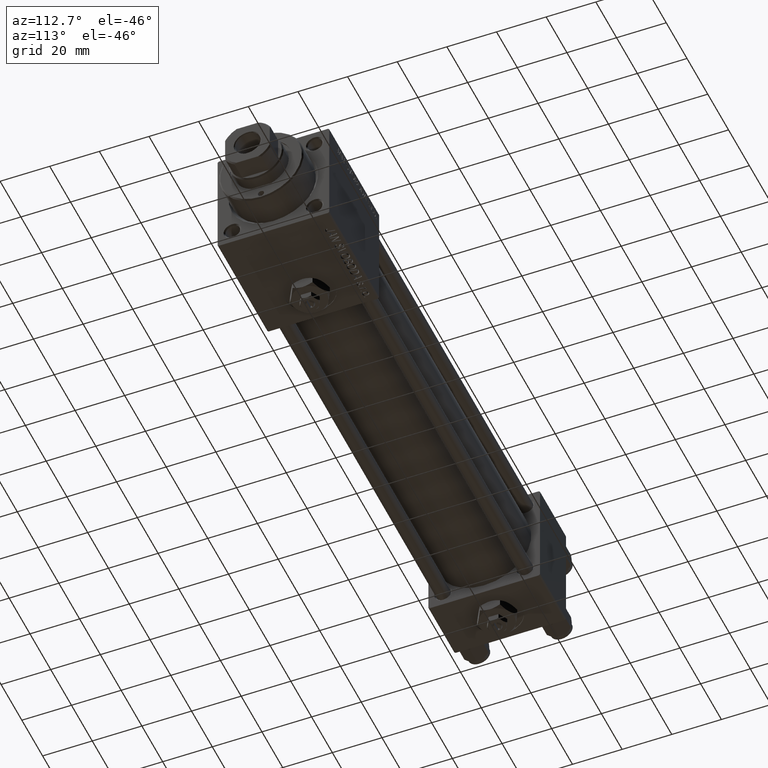
[diagram: clean part render]
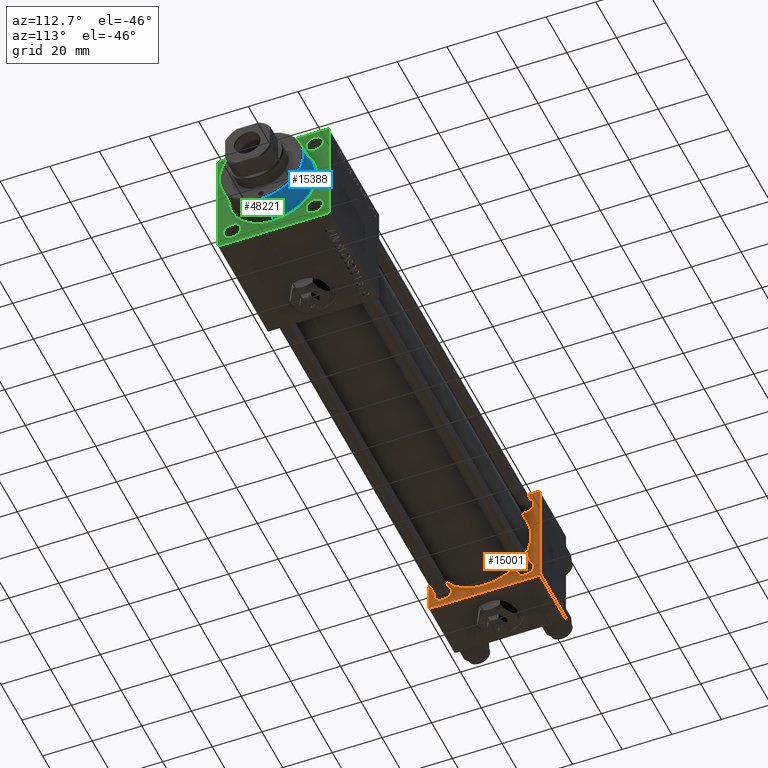
[diagram: same view with three faces highlighted in distinct colors, each labeled with its STEP entity id]
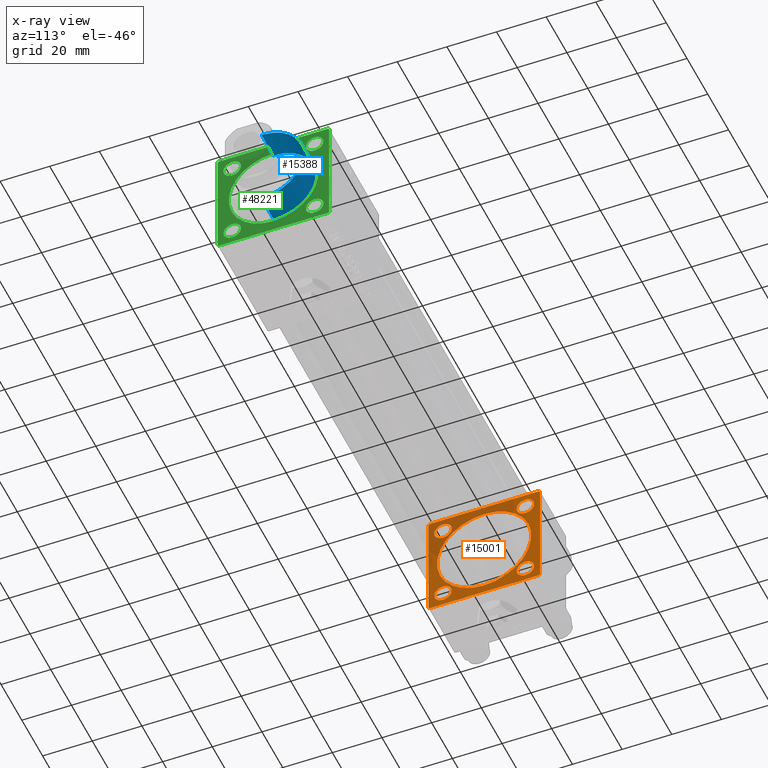
[diagram: x-ray of the same camera — body ghosted, the three highlighted faces saturated]
A machine part, auxiliary view with three faces highlighted in distinct colors.
The next image is the same camera in x-ray (body ghosted, the three faces saturated) — at least one of them is partly hidden behind the body in this view.
Their STEP definitions:

[orange] entity #15001 — the highlighted planar face has unit normal (-1, 0, 0).
#54 = DIRECTION ( 'NONE',  ( -0.000000000000000000, 0.7071067811865426878, 0.7071067811865524577 ) ) ;
#562 = CARTESIAN_POINT ( 'NONE',  ( 25.00000000000000000, 22.50000000000000000, -21.99999999999996803 ) ) ;
#611 = DIRECTION ( 'NONE',  ( -1.000000000000000000, 0.000000000000000000, -0.000000000000000000 ) ) ;
#821 = DIRECTION ( 'NONE',  ( 0.000000000000000000, 0.000000000000000000, 1.000000000000000000 ) ) ;
#858 = CARTESIAN_POINT ( 'NONE',  ( 25.00000000000000000, 16.59999999999999787, -20.10000000000003340 ) ) ;
#1456 = CARTESIAN_POINT ( 'NONE',  ( 25.00000000000000000, 16.59999999999999787, 13.09999999999997300 ) ) ;
#1690 = CARTESIAN_POINT ( 'NONE',  ( 24.99999999999999289, -2.602085213965210642E-15, 0.000000000000000000 ) ) ;
#1857 = CARTESIAN_POINT ( 'NONE',  ( 24.99999999999999289, -2.752562955852396712E-16, -19.00000000000000000 ) ) ;
#2582 = AXIS2_PLACEMENT_3D ( 'NONE', #49277, #16480, #7608 ) ;
#2996 = DIRECTION ( 'NONE',  ( 0.000000000000000000, -1.000000000000000000, -2.312964634635742957E-16 ) ) ;
#3019 = CARTESIAN_POINT ( 'NONE',  ( 25.00000000000000000, -16.59999999999999076, 13.09999999999997300 ) ) ;
#3586 = CIRCLE ( 'NONE', #19974, 3.500000000000034195 ) ;
#3744 = LINE ( 'NONE', #16154, #9603 ) ;
#4223 = CARTESIAN_POINT ( 'NONE',  ( 25.00000000000000000, -16.59999999999999076, 20.10000000000004050 ) ) ;
#4245 = VERTEX_POINT ( 'NONE', #43832 ) ;
#4302 = DIRECTION ( 'NONE',  ( -1.000000000000000000, 0.000000000000000000, -0.000000000000000000 ) ) ;
#4357 = AXIS2_PLACEMENT_3D ( 'NONE', #25461, #41700, #41427 ) ;
#4558 = ORIENTED_EDGE ( 'NONE', *, *, #30604, .T. ) ;
#4705 = VERTEX_POINT ( 'NONE', #52416 ) ;
#5080 = CARTESIAN_POINT ( 'NONE',  ( 25.00000000000000000, -16.59999999999999076, 16.60000000000000853 ) ) ;
#5137 = CARTESIAN_POINT ( 'NONE',  ( 24.99999999999999289, -2.602085213965210642E-15, 0.000000000000000000 ) ) ;
#5138 = VERTEX_POINT ( 'NONE', #52233 ) ;
#5696 = VERTEX_POINT ( 'NONE', #22384 ) ;
#5780 = DIRECTION ( 'NONE',  ( 0.000000000000000000, 0.000000000000000000, 1.000000000000000000 ) ) ;
#6045 = CARTESIAN_POINT ( 'NONE',  ( 25.00000000000000000, 16.59999999999999787, -16.60000000000000497 ) ) ;
#6524 = CARTESIAN_POINT ( 'NONE',  ( 25.00000000000000000, 22.50000000000000000, -22.49999999999999645 ) ) ;
#7250 = VERTEX_POINT ( 'NONE', #51194 ) ;
#7306 = DIRECTION ( 'NONE',  ( 0.000000000000000000, -0.7071067811865474617, 0.7071067811865474617 ) ) ;
#7608 = DIRECTION ( 'NONE',  ( -0.000000000000000000, 0.000000000000000000, 1.000000000000000000 ) ) ;
#7901 = VERTEX_POINT ( 'NONE', #1456 ) ;
#8117 = ORIENTED_EDGE ( 'NONE', *, *, #30043, .T. ) ;
#9062 = DIRECTION ( 'NONE',  ( 0.000000000000000000, 0.000000000000000000, 1.000000000000000000 ) ) ;
#9171 = VECTOR ( 'NONE', #46180, 1000.000000000000000 ) ;
#9564 = VECTOR ( 'NONE', #26753, 1000.000000000000000 ) ;
#9603 = VECTOR ( 'NONE', #52734, 1000.000000000000000 ) ;
#9936 = EDGE_CURVE ( 'NONE', #50909, #52611, #30142, .T. ) ;
#10244 = CARTESIAN_POINT ( 'NONE',  ( 25.00000000000000000, 22.50000000000000000, 22.50000000000000355 ) ) ;
#10296 = VECTOR ( 'NONE', #2996, 1000.000000000000000 ) ;
#10301 = EDGE_CURVE ( 'NONE', #28830, #5138, #23003, .T. ) ;
#11914 = FACE_BOUND ( 'NONE', #35670, .T. ) ;
#12404 = EDGE_CURVE ( 'NONE', #45348, #28450, #22300, .T. ) ;
#12761 = ORIENTED_EDGE ( 'NONE', *, *, #22228, .F. ) ;
#13361 = ORIENTED_EDGE ( 'NONE', *, *, #39780, .T. ) ;
#13401 = AXIS2_PLACEMENT_3D ( 'NONE', #18227, #22291, #9062 ) ;
#13411 = LINE ( 'NONE', #37244, #9171 ) ;
#13551 = ORIENTED_EDGE ( 'NONE', *, *, #10301, .F. ) ;
#13615 = ORIENTED_EDGE ( 'NONE', *, *, #37927, .T. ) ;
#14830 = DIRECTION ( 'NONE',  ( -1.000000000000000000, 0.000000000000000000, -0.000000000000000000 ) ) ;
#14867 = AXIS2_PLACEMENT_3D ( 'NONE', #41353, #4302, #16978 ) ;
#15001 = ADVANCED_FACE ( 'NONE', ( #36544, #15957, #11914, #49012, #28944, #45204 ), #45729, .F. ) ;
#15059 = ORIENTED_EDGE ( 'NONE', *, *, #25457, .T. ) ;
#15382 = CARTESIAN_POINT ( 'NONE',  ( 25.00000000000000000, 21.99999999999999289, 22.50000000000000355 ) ) ;
#15397 = CIRCLE ( 'NONE', #22319, 19.00000000000000000 ) ;
#15570 = CIRCLE ( 'NONE', #4357, 3.500000000000031086 ) ;
#15957 = FACE_BOUND ( 'NONE', #51890, .T. ) ;
#16013 = ORIENTED_EDGE ( 'NONE', *, *, #28994, .T. ) ;
#16154 = CARTESIAN_POINT ( 'NONE',  ( 25.00000000000000000, -22.50000000000000000, 22.50000000000000000 ) ) ;
#16480 = DIRECTION ( 'NONE',  ( -1.000000000000000000, 0.000000000000000000, -0.000000000000000000 ) ) ;
#16942 = EDGE_CURVE ( 'NONE', #7250, #5696, #47339, .T. ) ;
#16978 = DIRECTION ( 'NONE',  ( 0.000000000000000000, 0.000000000000000000, 1.000000000000000000 ) ) ;
#17831 = DIRECTION ( 'NONE',  ( 1.000000000000000000, -0.000000000000000000, 0.000000000000000000 ) ) ;
#18088 = CARTESIAN_POINT ( 'NONE',  ( 25.00000000000000000, -22.50000000000000000, 22.00000000000000000 ) ) ;
#18227 = CARTESIAN_POINT ( 'NONE',  ( 25.00000000000000000, -16.59999999999999076, -16.60000000000000853 ) ) ;
#19203 = ORIENTED_EDGE ( 'NONE', *, *, #12404, .F. ) ;
#19374 = EDGE_LOOP ( 'NONE', ( #24273, #19203 ) ) ;
#19974 = AXIS2_PLACEMENT_3D ( 'NONE', #25205, #611, #21960 ) ;
#20187 = ORIENTED_EDGE ( 'NONE', *, *, #16942, .T. ) ;
#20585 = CARTESIAN_POINT ( 'NONE',  ( 25.00000000000000000, 22.50000000000000000, -21.99999999999998224 ) ) ;
#20627 = CIRCLE ( 'NONE', #27563, 3.500000000000034195 ) ;
#21575 = DIRECTION ( 'NONE',  ( 0.000000000000000000, 0.000000000000000000, 1.000000000000000000 ) ) ;
#21893 = DIRECTION ( 'NONE',  ( 0.000000000000000000, 0.000000000000000000, 1.000000000000000000 ) ) ;
#21960 = DIRECTION ( 'NONE',  ( 0.000000000000000000, 0.000000000000000000, 1.000000000000000000 ) ) ;
#22181 = VERTEX_POINT ( 'NONE', #3019 ) ;
#22228 = EDGE_CURVE ( 'NONE', #4245, #37304, #31940, .T. ) ;
#22291 = DIRECTION ( 'NONE',  ( -1.000000000000000000, 0.000000000000000000, -0.000000000000000000 ) ) ;
#22300 = CIRCLE ( 'NONE', #29208, 19.00000000000000000 ) ;
#22319 = AXIS2_PLACEMENT_3D ( 'NONE', #1690, #51756, #51234 ) ;
#22384 = CARTESIAN_POINT ( 'NONE',  ( 25.00000000000000000, -21.99999999999997868, 22.50000000000000000 ) ) ;
#22869 = AXIS2_PLACEMENT_3D ( 'NONE', #30565, #42759, #30030 ) ;
#23003 = LINE ( 'NONE', #6524, #10296 ) ;
#23244 = LINE ( 'NONE', #15382, #39229 ) ;
#23350 = CARTESIAN_POINT ( 'NONE',  ( 25.00000000000000000, 21.99999999999999289, -22.49999999999999645 ) ) ;
#24031 = VERTEX_POINT ( 'NONE', #32043 ) ;
#24139 = LINE ( 'NONE', #49333, #24221 ) ;
#24221 = VECTOR ( 'NONE', #33060, 999.9999999999998863 ) ;
#24246 = ORIENTED_EDGE ( 'NONE', *, *, #44624, .T. ) ;
#24273 = ORIENTED_EDGE ( 'NONE', *, *, #50652, .F. ) ;
#25205 = CARTESIAN_POINT ( 'NONE',  ( 25.00000000000000000, -16.59999999999999076, 16.60000000000000853 ) ) ;
#25457 = EDGE_CURVE ( 'NONE', #52611, #50909, #15570, .T. ) ;
#25461 = CARTESIAN_POINT ( 'NONE',  ( 25.00000000000000000, 16.59999999999999787, -16.60000000000000497 ) ) ;
#25707 = EDGE_CURVE ( 'NONE', #27833, #22181, #20627, .T. ) ;
#26323 = CIRCLE ( 'NONE', #22869, 3.500000000000031086 ) ;
#26559 = DIRECTION ( 'NONE',  ( 0.000000000000000000, 0.000000000000000000, -1.000000000000000000 ) ) ;
#26753 = DIRECTION ( 'NONE',  ( 0.000000000000000000, -1.000000000000000000, -7.709882115452476934E-17 ) ) ;
#26970 = ORIENTED_EDGE ( 'NONE', *, *, #52015, .T. ) ;
#27563 = AXIS2_PLACEMENT_3D ( 'NONE', #5080, #38093, #21575 ) ;
#27833 = VERTEX_POINT ( 'NONE', #4223 ) ;
#28450 = VERTEX_POINT ( 'NONE', #50582 ) ;
#28830 = VERTEX_POINT ( 'NONE', #23350 ) ;
#28944 = FACE_BOUND ( 'NONE', #19374, .T. ) ;
#28994 = EDGE_CURVE ( 'NONE', #5696, #45952, #24139, .T. ) ;
#29208 = AXIS2_PLACEMENT_3D ( 'NONE', #5137, #17831, #821 ) ;
#29247 = LINE ( 'NONE', #20585, #32986 ) ;
#29268 = VERTEX_POINT ( 'NONE', #30601 ) ;
#30030 = DIRECTION ( 'NONE',  ( 0.000000000000000000, 0.000000000000000000, 1.000000000000000000 ) ) ;
#30043 = EDGE_CURVE ( 'NONE', #22181, #27833, #3586, .T. ) ;
#30142 = CIRCLE ( 'NONE', #37062, 3.500000000000031086 ) ;
#30446 = ORIENTED_EDGE ( 'NONE', *, *, #41547, .T. ) ;
#30491 = EDGE_LOOP ( 'NONE', ( #26970, #30446 ) ) ;
#30565 = CARTESIAN_POINT ( 'NONE',  ( 25.00000000000000000, 16.59999999999999787, 16.60000000000000497 ) ) ;
#30601 = CARTESIAN_POINT ( 'NONE',  ( 25.00000000000000000, 16.59999999999999787, 20.10000000000003340 ) ) ;
#30604 = EDGE_CURVE ( 'NONE', #45952, #31758, #3744, .T. ) ;
#31423 = CARTESIAN_POINT ( 'NONE',  ( 25.00000000000000000, 22.50000000000000000, 22.50000000000000355 ) ) ;
#31758 = VERTEX_POINT ( 'NONE', #38398 ) ;
#31940 = LINE ( 'NONE', #31423, #33958 ) ;
#32043 = CARTESIAN_POINT ( 'NONE',  ( 25.00000000000000000, -16.59999999999999076, -20.10000000000003695 ) ) ;
#32264 = CIRCLE ( 'NONE', #52144, 3.500000000000031086 ) ;
#32986 = VECTOR ( 'NONE', #54, 1000.000000000000000 ) ;
#33060 = DIRECTION ( 'NONE',  ( -0.000000000000000000, -0.7071067811865525687, -0.7071067811865425767 ) ) ;
#33958 = VECTOR ( 'NONE', #26559, 1000.000000000000000 ) ;
#35013 = CIRCLE ( 'NONE', #13401, 3.500000000000031086 ) ;
#35670 = EDGE_LOOP ( 'NONE', ( #8117, #49488 ) ) ;
#36208 = ORIENTED_EDGE ( 'NONE', *, *, #42890, .T. ) ;
#36544 = FACE_BOUND ( 'NONE', #45676, .T. ) ;
#37062 = AXIS2_PLACEMENT_3D ( 'NONE', #6045, #51530, #5780 ) ;
#37244 = CARTESIAN_POINT ( 'NONE',  ( 25.00000000000000000, -21.99999999999998579, -22.50000000000000711 ) ) ;
#37304 = VERTEX_POINT ( 'NONE', #562 ) ;
#37927 = EDGE_CURVE ( 'NONE', #4705, #24031, #32264, .T. ) ;
#38093 = DIRECTION ( 'NONE',  ( -1.000000000000000000, 0.000000000000000000, -0.000000000000000000 ) ) ;
#38398 = CARTESIAN_POINT ( 'NONE',  ( 25.00000000000000000, -22.50000000000000000, -21.99999999999997158 ) ) ;
#38687 = CARTESIAN_POINT ( 'NONE',  ( 25.00000000000000000, 16.59999999999999787, -13.09999999999997300 ) ) ;
#39163 = ORIENTED_EDGE ( 'NONE', *, *, #9936, .T. ) ;
#39229 = VECTOR ( 'NONE', #7306, 1000.000000000000114 ) ;
#39780 = EDGE_CURVE ( 'NONE', #4245, #7250, #23244, .T. ) ;
#41353 = CARTESIAN_POINT ( 'NONE',  ( 25.00000000000000000, 16.59999999999999787, 16.60000000000000497 ) ) ;
#41427 = DIRECTION ( 'NONE',  ( 0.000000000000000000, 0.000000000000000000, 1.000000000000000000 ) ) ;
#41547 = EDGE_CURVE ( 'NONE', #29268, #7901, #26323, .T. ) ;
#41700 = DIRECTION ( 'NONE',  ( -1.000000000000000000, 0.000000000000000000, -0.000000000000000000 ) ) ;
#42759 = DIRECTION ( 'NONE',  ( -1.000000000000000000, 0.000000000000000000, -0.000000000000000000 ) ) ;
#42890 = EDGE_CURVE ( 'NONE', #24031, #4705, #35013, .T. ) ;
#43008 = CARTESIAN_POINT ( 'NONE',  ( 25.00000000000000000, -16.59999999999999076, -16.60000000000000853 ) ) ;
#43053 = ORIENTED_EDGE ( 'NONE', *, *, #51781, .T. ) ;
#43832 = CARTESIAN_POINT ( 'NONE',  ( 25.00000000000000000, 22.50000000000000000, 21.99999999999999645 ) ) ;
#44573 = EDGE_LOOP ( 'NONE', ( #13551, #43053, #12761, #13361, #20187, #16013, #4558, #24246 ) ) ;
#44624 = EDGE_CURVE ( 'NONE', #31758, #5138, #13411, .T. ) ;
#45204 = FACE_OUTER_BOUND ( 'NONE', #44573, .T. ) ;
#45348 = VERTEX_POINT ( 'NONE', #1857 ) ;
#45676 = EDGE_LOOP ( 'NONE', ( #36208, #13615 ) ) ;
#45729 = PLANE ( 'NONE',  #2582 ) ;
#45952 = VERTEX_POINT ( 'NONE', #18088 ) ;
#46180 = DIRECTION ( 'NONE',  ( 0.000000000000000000, 0.7071067811865426878, -0.7071067811865524577 ) ) ;
#47339 = LINE ( 'NONE', #10244, #9564 ) ;
#48591 = CIRCLE ( 'NONE', #14867, 3.500000000000031086 ) ;
#49012 = FACE_BOUND ( 'NONE', #30491, .T. ) ;
#49277 = CARTESIAN_POINT ( 'NONE',  ( 25.00000000000000000, 0.000000000000000000, 0.000000000000000000 ) ) ;
#49333 = CARTESIAN_POINT ( 'NONE',  ( 25.00000000000000000, -22.50000000000000000, 22.00000000000000000 ) ) ;
#49488 = ORIENTED_EDGE ( 'NONE', *, *, #25707, .T. ) ;
#50582 = CARTESIAN_POINT ( 'NONE',  ( 24.99999999999999289, -2.602085213965210642E-15, 19.00000000000000000 ) ) ;
#50652 = EDGE_CURVE ( 'NONE', #28450, #45348, #15397, .T. ) ;
#50909 = VERTEX_POINT ( 'NONE', #38687 ) ;
#51194 = CARTESIAN_POINT ( 'NONE',  ( 25.00000000000000000, 21.99999999999999289, 22.50000000000000355 ) ) ;
#51234 = DIRECTION ( 'NONE',  ( 0.000000000000000000, 0.000000000000000000, 1.000000000000000000 ) ) ;
#51530 = DIRECTION ( 'NONE',  ( -1.000000000000000000, 0.000000000000000000, -0.000000000000000000 ) ) ;
#51756 = DIRECTION ( 'NONE',  ( 1.000000000000000000, -0.000000000000000000, 0.000000000000000000 ) ) ;
#51781 = EDGE_CURVE ( 'NONE', #28830, #37304, #29247, .T. ) ;
#51890 = EDGE_LOOP ( 'NONE', ( #15059, #39163 ) ) ;
#52015 = EDGE_CURVE ( 'NONE', #7901, #29268, #48591, .T. ) ;
#52144 = AXIS2_PLACEMENT_3D ( 'NONE', #43008, #14830, #21893 ) ;
#52233 = CARTESIAN_POINT ( 'NONE',  ( 25.00000000000000000, -21.99999999999997158, -22.50000000000000711 ) ) ;
#52416 = CARTESIAN_POINT ( 'NONE',  ( 25.00000000000000000, -16.59999999999999076, -13.09999999999997655 ) ) ;
#52611 = VERTEX_POINT ( 'NONE', #858 ) ;
#52734 = DIRECTION ( 'NONE',  ( 0.000000000000000000, 0.000000000000000000, -1.000000000000000000 ) ) ;

[blue] entity #15388 — the highlighted cylindrical surface (partial cylindrical patch) has radius 17 mm, axis along (-1, -0, -0).
#305 = EDGE_LOOP ( 'NONE', ( #53503, #2838, #26036, #1406 ) ) ;
#1009 = CYLINDRICAL_SURFACE ( 'NONE', #32802, 17.00000000000000000 ) ;
#1406 = ORIENTED_EDGE ( 'NONE', *, *, #29190, .F. ) ;
#2433 = CIRCLE ( 'NONE', #35258, 17.00000000000000000 ) ;
#2838 = ORIENTED_EDGE ( 'NONE', *, *, #12674, .T. ) ;
#3289 = CARTESIAN_POINT ( 'NONE',  ( 17.00000000000000000, 2.081899558550500280E-15, 28.69999999999999929 ) ) ;
#4211 = LINE ( 'NONE', #13115, #50020 ) ;
#4370 = CARTESIAN_POINT ( 'NONE',  ( -17.00000000000000000, 0.000000000000000000, 28.69999999999999929 ) ) ;
#4527 = CARTESIAN_POINT ( 'NONE',  ( 0.000000000000000000, 0.000000000000000000, 28.69999999999999929 ) ) ;
#7840 = EDGE_CURVE ( 'NONE', #41678, #45858, #2433, .T. ) ;
#8087 = CARTESIAN_POINT ( 'NONE',  ( -17.00000000000000000, 0.000000000000000000, 40.19999999999999574 ) ) ;
#8855 = DIRECTION ( 'NONE',  ( 1.000000000000000000, 0.000000000000000000, 0.000000000000000000 ) ) ;
#12674 = EDGE_CURVE ( 'NONE', #45858, #13142, #4211, .T. ) ;
#12756 = DIRECTION ( 'NONE',  ( -0.000000000000000000, -0.000000000000000000, -1.000000000000000000 ) ) ;
#13022 = VECTOR ( 'NONE', #12756, 1000.000000000000000 ) ;
#13115 = CARTESIAN_POINT ( 'NONE',  ( 17.00000000000000000, 2.081899558550500280E-15, 40.70000000000000284 ) ) ;
#13142 = VERTEX_POINT ( 'NONE', #3289 ) ;
#13525 = CIRCLE ( 'NONE', #43796, 17.00000000000000000 ) ;
#14950 = DIRECTION ( 'NONE',  ( 1.000000000000000000, 0.000000000000000000, 0.000000000000000000 ) ) ;
#15388 = ADVANCED_FACE ( 'NONE', ( #34280 ), #1009, .T. ) ;
#21011 = DIRECTION ( 'NONE',  ( 0.000000000000000000, 0.000000000000000000, 1.000000000000000000 ) ) ;
#21555 = CARTESIAN_POINT ( 'NONE',  ( 0.000000000000000000, 0.000000000000000000, 40.70000000000000284 ) ) ;
#22271 = CARTESIAN_POINT ( 'NONE',  ( 0.000000000000000000, 0.000000000000000000, 40.19999999999999574 ) ) ;
#25890 = DIRECTION ( 'NONE',  ( -1.000000000000000000, 0.000000000000000000, 0.000000000000000000 ) ) ;
#26020 = LINE ( 'NONE', #29528, #13022 ) ;
#26036 = ORIENTED_EDGE ( 'NONE', *, *, #46188, .T. ) ;
#29190 = EDGE_CURVE ( 'NONE', #41678, #51787, #26020, .T. ) ;
#29528 = CARTESIAN_POINT ( 'NONE',  ( -17.00000000000000000, 0.000000000000000000, 40.70000000000000284 ) ) ;
#32802 = AXIS2_PLACEMENT_3D ( 'NONE', #21555, #33727, #25890 ) ;
#33727 = DIRECTION ( 'NONE',  ( -0.000000000000000000, -0.000000000000000000, -1.000000000000000000 ) ) ;
#34280 = FACE_OUTER_BOUND ( 'NONE', #305, .T. ) ;
#35258 = AXIS2_PLACEMENT_3D ( 'NONE', #22271, #42862, #14950 ) ;
#41651 = CARTESIAN_POINT ( 'NONE',  ( 17.00000000000000000, 2.081899558550500280E-15, 40.19999999999999574 ) ) ;
#41678 = VERTEX_POINT ( 'NONE', #8087 ) ;
#42862 = DIRECTION ( 'NONE',  ( 0.000000000000000000, 0.000000000000000000, -1.000000000000000000 ) ) ;
#43796 = AXIS2_PLACEMENT_3D ( 'NONE', #4527, #21011, #8855 ) ;
#45858 = VERTEX_POINT ( 'NONE', #41651 ) ;
#46188 = EDGE_CURVE ( 'NONE', #13142, #51787, #13525, .T. ) ;
#49953 = DIRECTION ( 'NONE',  ( -0.000000000000000000, -0.000000000000000000, -1.000000000000000000 ) ) ;
#50020 = VECTOR ( 'NONE', #49953, 1000.000000000000000 ) ;
#51787 = VERTEX_POINT ( 'NONE', #4370 ) ;
#53503 = ORIENTED_EDGE ( 'NONE', *, *, #7840, .T. ) ;

[green] entity #48221 — the highlighted planar face has unit normal (-1, 0, 0).
#1013 = CARTESIAN_POINT ( 'NONE',  ( 227.9999999999999716, -21.99999999999995381, -22.50000000000000000 ) ) ;
#1370 = ORIENTED_EDGE ( 'NONE', *, *, #37555, .T. ) ;
#1529 = ORIENTED_EDGE ( 'NONE', *, *, #19577, .T. ) ;
#1898 = DIRECTION ( 'NONE',  ( -0.000000000000000000, 0.7071067811865474617, 0.7071067811865474617 ) ) ;
#2025 = EDGE_CURVE ( 'NONE', #34364, #46948, #13667, .T. ) ;
#4080 = ORIENTED_EDGE ( 'NONE', *, *, #23137, .F. ) ;
#4348 = CIRCLE ( 'NONE', #21598, 3.500000000000003109 ) ;
#4786 = CARTESIAN_POINT ( 'NONE',  ( 227.9999999999999716, -16.60000000000000497, -16.60000000000000497 ) ) ;
#5320 = DIRECTION ( 'NONE',  ( -1.000000000000000000, 0.000000000000000000, -0.000000000000000000 ) ) ;
#6052 = CIRCLE ( 'NONE', #43220, 3.500000000000003109 ) ;
#6206 = AXIS2_PLACEMENT_3D ( 'NONE', #23414, #26685, #22881 ) ;
#6238 = EDGE_CURVE ( 'NONE', #12649, #30913, #50772, .T. ) ;
#7768 = VERTEX_POINT ( 'NONE', #50462 ) ;
#7973 = CARTESIAN_POINT ( 'NONE',  ( 227.9999999999999716, -22.49999999999999645, 21.99999999999999289 ) ) ;
#8222 = DIRECTION ( 'NONE',  ( 0.000000000000000000, 0.000000000000000000, 1.000000000000000000 ) ) ;
#8281 = ORIENTED_EDGE ( 'NONE', *, *, #6238, .T. ) ;
#8484 = FACE_BOUND ( 'NONE', #44867, .T. ) ;
#9750 = ORIENTED_EDGE ( 'NONE', *, *, #36088, .T. ) ;
#9875 = DIRECTION ( 'NONE',  ( -1.000000000000000000, 0.000000000000000000, -0.000000000000000000 ) ) ;
#9885 = CARTESIAN_POINT ( 'NONE',  ( 227.9999999999999716, 2.204364238465241344E-15, 18.00000000000004263 ) ) ;
#10385 = CARTESIAN_POINT ( 'NONE',  ( 227.9999999999999716, 22.50000000000000355, -21.99999999999998224 ) ) ;
#11192 = VECTOR ( 'NONE', #1898, 1000.000000000000114 ) ;
#11329 = CARTESIAN_POINT ( 'NONE',  ( 227.9999999999999716, 0.000000000000000000, 0.000000000000000000 ) ) ;
#11802 = ORIENTED_EDGE ( 'NONE', *, *, #16631, .T. ) ;
#11886 = DIRECTION ( 'NONE',  ( 0.000000000000000000, 0.000000000000000000, 1.000000000000000000 ) ) ;
#12071 = AXIS2_PLACEMENT_3D ( 'NONE', #19198, #19989, #11886 ) ;
#12107 = CIRCLE ( 'NONE', #12071, 18.00000000000004263 ) ;
#12556 = VERTEX_POINT ( 'NONE', #31360 ) ;
#12649 = VERTEX_POINT ( 'NONE', #16891 ) ;
#12762 = VERTEX_POINT ( 'NONE', #23109 ) ;
#12923 = CARTESIAN_POINT ( 'NONE',  ( 227.9999999999999716, 22.50000000000000355, 22.50000000000000355 ) ) ;
#13446 = EDGE_CURVE ( 'NONE', #12762, #35696, #51696, .T. ) ;
#13667 = LINE ( 'NONE', #26654, #28110 ) ;
#14193 = ORIENTED_EDGE ( 'NONE', *, *, #19428, .T. ) ;
#15433 = CARTESIAN_POINT ( 'NONE',  ( 227.9999999999999716, 21.99999999999997513, 22.50000000000000355 ) ) ;
#15683 = EDGE_LOOP ( 'NONE', ( #30441, #11802 ) ) ;
#16395 = EDGE_CURVE ( 'NONE', #30913, #12649, #4348, .T. ) ;
#16605 = DIRECTION ( 'NONE',  ( -0.000000000000000000, -0.7071067811865474617, -0.7071067811865474617 ) ) ;
#16631 = EDGE_CURVE ( 'NONE', #40655, #30682, #51879, .T. ) ;
#16891 = CARTESIAN_POINT ( 'NONE',  ( 227.9999999999999716, 16.59999999999999787, 20.10000000000000853 ) ) ;
#17336 = AXIS2_PLACEMENT_3D ( 'NONE', #45118, #23998, #44853 ) ;
#18426 = EDGE_CURVE ( 'NONE', #30682, #40655, #20813, .T. ) ;
#19198 = CARTESIAN_POINT ( 'NONE',  ( 227.9999999999999716, 0.000000000000000000, 0.000000000000000000 ) ) ;
#19232 = LINE ( 'NONE', #15433, #20198 ) ;
#19428 = EDGE_CURVE ( 'NONE', #40627, #20293, #39041, .T. ) ;
#19577 = EDGE_CURVE ( 'NONE', #26822, #51713, #49404, .T. ) ;
#19989 = DIRECTION ( 'NONE',  ( -1.000000000000000000, 0.000000000000000000, -0.000000000000000000 ) ) ;
#20062 = CARTESIAN_POINT ( 'NONE',  ( 227.9999999999999716, -16.59999999999999787, 20.10000000000000142 ) ) ;
#20111 = FACE_BOUND ( 'NONE', #21874, .T. ) ;
#20198 = VECTOR ( 'NONE', #52018, 1000.000000000000000 ) ;
#20293 = VERTEX_POINT ( 'NONE', #51995 ) ;
#20813 = CIRCLE ( 'NONE', #17336, 3.500000000000003109 ) ;
#21598 = AXIS2_PLACEMENT_3D ( 'NONE', #39368, #9875, #23377 ) ;
#21874 = EDGE_LOOP ( 'NONE', ( #1529, #36960 ) ) ;
#21926 = CARTESIAN_POINT ( 'NONE',  ( 227.9999999999999716, 0.000000000000000000, -18.00000000000004263 ) ) ;
#21994 = DIRECTION ( 'NONE',  ( 0.000000000000000000, 0.000000000000000000, 1.000000000000000000 ) ) ;
#22107 = CARTESIAN_POINT ( 'NONE',  ( 227.9999999999999716, -16.59999999999999787, 13.09999999999999432 ) ) ;
#22875 = LINE ( 'NONE', #47528, #23569 ) ;
#22881 = DIRECTION ( 'NONE',  ( 0.000000000000000000, 0.000000000000000000, 1.000000000000000000 ) ) ;
#23109 = CARTESIAN_POINT ( 'NONE',  ( 227.9999999999999716, 22.00000000000000355, -22.49999999999999645 ) ) ;
#23137 = EDGE_CURVE ( 'NONE', #12762, #46948, #23384, .T. ) ;
#23243 = CARTESIAN_POINT ( 'NONE',  ( 227.9999999999999716, -16.60000000000000497, -16.60000000000000497 ) ) ;
#23320 = EDGE_CURVE ( 'NONE', #23964, #34364, #38242, .T. ) ;
#23377 = DIRECTION ( 'NONE',  ( 0.000000000000000000, 0.000000000000000000, 1.000000000000000000 ) ) ;
#23384 = LINE ( 'NONE', #40420, #26348 ) ;
#23414 = CARTESIAN_POINT ( 'NONE',  ( 227.9999999999999716, -16.59999999999999787, 16.59999999999999787 ) ) ;
#23569 = VECTOR ( 'NONE', #32058, 1000.000000000000000 ) ;
#23817 = VERTEX_POINT ( 'NONE', #9885 ) ;
#23964 = VERTEX_POINT ( 'NONE', #7973 ) ;
#23998 = DIRECTION ( 'NONE',  ( -1.000000000000000000, 0.000000000000000000, -0.000000000000000000 ) ) ;
#24432 = DIRECTION ( 'NONE',  ( -1.000000000000000000, 0.000000000000000000, -0.000000000000000000 ) ) ;
#24433 = FACE_OUTER_BOUND ( 'NONE', #51631, .T. ) ;
#24601 = EDGE_CURVE ( 'NONE', #23817, #51179, #12107, .T. ) ;
#24701 = FACE_BOUND ( 'NONE', #33163, .T. ) ;
#24962 = DIRECTION ( 'NONE',  ( -0.000000000000000000, 0.000000000000000000, 1.000000000000000000 ) ) ;
#25443 = ORIENTED_EDGE ( 'NONE', *, *, #40015, .T. ) ;
#25444 = VECTOR ( 'NONE', #32827, 1000.000000000000000 ) ;
#25909 = ORIENTED_EDGE ( 'NONE', *, *, #27258, .T. ) ;
#26348 = VECTOR ( 'NONE', #28242, 1000.000000000000000 ) ;
#26416 = CARTESIAN_POINT ( 'NONE',  ( 227.9999999999999716, -21.99999999999998224, 22.49999999999999289 ) ) ;
#26518 = EDGE_CURVE ( 'NONE', #51179, #23817, #51809, .T. ) ;
#26654 = CARTESIAN_POINT ( 'NONE',  ( 227.9999999999999716, -21.99999999999996803, -22.50000000000000000 ) ) ;
#26685 = DIRECTION ( 'NONE',  ( -1.000000000000000000, 0.000000000000000000, -0.000000000000000000 ) ) ;
#26822 = VERTEX_POINT ( 'NONE', #22107 ) ;
#27168 = DIRECTION ( 'NONE',  ( 0.000000000000000000, 0.000000000000000000, 1.000000000000000000 ) ) ;
#27258 = EDGE_CURVE ( 'NONE', #20293, #40627, #6052, .T. ) ;
#27603 = AXIS2_PLACEMENT_3D ( 'NONE', #11329, #35959, #31881 ) ;
#28110 = VECTOR ( 'NONE', #38568, 1000.000000000000000 ) ;
#28242 = DIRECTION ( 'NONE',  ( 0.000000000000000000, -1.000000000000000000, -7.709882115452476934E-17 ) ) ;
#28805 = CARTESIAN_POINT ( 'NONE',  ( 227.9999999999999716, -22.49999999999999645, 21.99999999999999289 ) ) ;
#29432 = DIRECTION ( 'NONE',  ( 0.000000000000000000, -1.000000000000000000, -2.312964634635742957E-16 ) ) ;
#29512 = AXIS2_PLACEMENT_3D ( 'NONE', #4786, #5320, #50272 ) ;
#29840 = CARTESIAN_POINT ( 'NONE',  ( 227.9999999999999716, -22.49999999999999645, 22.49999999999999289 ) ) ;
#30321 = ORIENTED_EDGE ( 'NONE', *, *, #53407, .F. ) ;
#30391 = ORIENTED_EDGE ( 'NONE', *, *, #24601, .T. ) ;
#30441 = ORIENTED_EDGE ( 'NONE', *, *, #18426, .T. ) ;
#30682 = VERTEX_POINT ( 'NONE', #42125 ) ;
#30843 = AXIS2_PLACEMENT_3D ( 'NONE', #46648, #50983, #21994 ) ;
#30913 = VERTEX_POINT ( 'NONE', #40465 ) ;
#31112 = AXIS2_PLACEMENT_3D ( 'NONE', #53414, #24432, #8222 ) ;
#31360 = CARTESIAN_POINT ( 'NONE',  ( 227.9999999999999716, 22.50000000000000355, 22.00000000000000355 ) ) ;
#31598 = ORIENTED_EDGE ( 'NONE', *, *, #16395, .T. ) ;
#31736 = ORIENTED_EDGE ( 'NONE', *, *, #23320, .T. ) ;
#31881 = DIRECTION ( 'NONE',  ( 0.000000000000000000, 0.000000000000000000, 1.000000000000000000 ) ) ;
#32058 = DIRECTION ( 'NONE',  ( 0.000000000000000000, 0.000000000000000000, -1.000000000000000000 ) ) ;
#32297 = AXIS2_PLACEMENT_3D ( 'NONE', #44487, #40399, #27168 ) ;
#32561 = DIRECTION ( 'NONE',  ( -1.000000000000000000, 0.000000000000000000, -0.000000000000000000 ) ) ;
#32825 = CARTESIAN_POINT ( 'NONE',  ( 227.9999999999999716, 0.000000000000000000, 0.000000000000000000 ) ) ;
#32827 = DIRECTION ( 'NONE',  ( 0.000000000000000000, 0.000000000000000000, -1.000000000000000000 ) ) ;
#33163 = EDGE_LOOP ( 'NONE', ( #31598, #8281 ) ) ;
#33602 = CARTESIAN_POINT ( 'NONE',  ( 227.9999999999999716, -22.49999999999999645, -21.99999999999995026 ) ) ;
#34364 = VERTEX_POINT ( 'NONE', #33602 ) ;
#35044 = LINE ( 'NONE', #12923, #45252 ) ;
#35696 = VERTEX_POINT ( 'NONE', #10385 ) ;
#35785 = ORIENTED_EDGE ( 'NONE', *, *, #13446, .T. ) ;
#35959 = DIRECTION ( 'NONE',  ( -1.000000000000000000, 0.000000000000000000, -0.000000000000000000 ) ) ;
#36088 = EDGE_CURVE ( 'NONE', #12556, #7768, #19232, .T. ) ;
#36219 = CARTESIAN_POINT ( 'NONE',  ( 227.9999999999999716, 16.59999999999999787, -13.10000000000000142 ) ) ;
#36425 = ORIENTED_EDGE ( 'NONE', *, *, #26518, .T. ) ;
#36932 = AXIS2_PLACEMENT_3D ( 'NONE', #32825, #32561, #24962 ) ;
#36960 = ORIENTED_EDGE ( 'NONE', *, *, #40244, .T. ) ;
#37431 = FACE_BOUND ( 'NONE', #15683, .T. ) ;
#37555 = EDGE_CURVE ( 'NONE', #53377, #23964, #50534, .T. ) ;
#38242 = LINE ( 'NONE', #29840, #25444 ) ;
#38568 = DIRECTION ( 'NONE',  ( 0.000000000000000000, 0.7071067811865426878, -0.7071067811865524577 ) ) ;
#38970 = DIRECTION ( 'NONE',  ( -1.000000000000000000, 0.000000000000000000, -0.000000000000000000 ) ) ;
#39041 = CIRCLE ( 'NONE', #29512, 3.500000000000003109 ) ;
#39368 = CARTESIAN_POINT ( 'NONE',  ( 227.9999999999999716, 16.59999999999999787, 16.60000000000000497 ) ) ;
#40015 = EDGE_CURVE ( 'NONE', #7768, #53377, #35044, .T. ) ;
#40030 = CARTESIAN_POINT ( 'NONE',  ( 227.9999999999999716, 22.50000000000000355, -21.99999999999999645 ) ) ;
#40244 = EDGE_CURVE ( 'NONE', #51713, #26822, #48746, .T. ) ;
#40399 = DIRECTION ( 'NONE',  ( -1.000000000000000000, 0.000000000000000000, -0.000000000000000000 ) ) ;
#40420 = CARTESIAN_POINT ( 'NONE',  ( 227.9999999999999716, 22.50000000000000355, -22.49999999999999645 ) ) ;
#40465 = CARTESIAN_POINT ( 'NONE',  ( 227.9999999999999716, 16.59999999999999787, 13.10000000000000142 ) ) ;
#40627 = VERTEX_POINT ( 'NONE', #40795 ) ;
#40655 = VERTEX_POINT ( 'NONE', #36219 ) ;
#40795 = CARTESIAN_POINT ( 'NONE',  ( 227.9999999999999716, -16.60000000000000497, -13.10000000000000142 ) ) ;
#40950 = PLANE ( 'NONE',  #36932 ) ;
#42125 = CARTESIAN_POINT ( 'NONE',  ( 227.9999999999999716, 16.59999999999999787, -20.10000000000000853 ) ) ;
#43220 = AXIS2_PLACEMENT_3D ( 'NONE', #23243, #38970, #44107 ) ;
#44107 = DIRECTION ( 'NONE',  ( 0.000000000000000000, 0.000000000000000000, 1.000000000000000000 ) ) ;
#44487 = CARTESIAN_POINT ( 'NONE',  ( 227.9999999999999716, -16.59999999999999787, 16.59999999999999787 ) ) ;
#44853 = DIRECTION ( 'NONE',  ( 0.000000000000000000, 0.000000000000000000, 1.000000000000000000 ) ) ;
#44867 = EDGE_LOOP ( 'NONE', ( #36425, #30391 ) ) ;
#45118 = CARTESIAN_POINT ( 'NONE',  ( 227.9999999999999716, 16.59999999999999787, -16.60000000000000497 ) ) ;
#45238 = ORIENTED_EDGE ( 'NONE', *, *, #2025, .T. ) ;
#45252 = VECTOR ( 'NONE', #29432, 1000.000000000000000 ) ;
#45326 = VECTOR ( 'NONE', #16605, 1000.000000000000114 ) ;
#45438 = EDGE_LOOP ( 'NONE', ( #25909, #14193 ) ) ;
#45555 = FACE_BOUND ( 'NONE', #45438, .T. ) ;
#46648 = CARTESIAN_POINT ( 'NONE',  ( 227.9999999999999716, 16.59999999999999787, 16.60000000000000497 ) ) ;
#46948 = VERTEX_POINT ( 'NONE', #1013 ) ;
#47528 = CARTESIAN_POINT ( 'NONE',  ( 227.9999999999999716, 22.50000000000000355, 22.50000000000000355 ) ) ;
#48221 = ADVANCED_FACE ( 'NONE', ( #24701, #20111, #45555, #37431, #8484, #24433 ), #40950, .F. ) ;
#48746 = CIRCLE ( 'NONE', #32297, 3.500000000000003109 ) ;
#49404 = CIRCLE ( 'NONE', #6206, 3.500000000000003109 ) ;
#50272 = DIRECTION ( 'NONE',  ( 0.000000000000000000, 0.000000000000000000, 1.000000000000000000 ) ) ;
#50462 = CARTESIAN_POINT ( 'NONE',  ( 227.9999999999999716, 21.99999999999997513, 22.50000000000000355 ) ) ;
#50534 = LINE ( 'NONE', #28805, #45326 ) ;
#50772 = CIRCLE ( 'NONE', #30843, 3.500000000000003109 ) ;
#50983 = DIRECTION ( 'NONE',  ( -1.000000000000000000, 0.000000000000000000, -0.000000000000000000 ) ) ;
#51179 = VERTEX_POINT ( 'NONE', #21926 ) ;
#51631 = EDGE_LOOP ( 'NONE', ( #31736, #45238, #4080, #35785, #30321, #9750, #25443, #1370 ) ) ;
#51696 = LINE ( 'NONE', #40030, #11192 ) ;
#51713 = VERTEX_POINT ( 'NONE', #20062 ) ;
#51809 = CIRCLE ( 'NONE', #27603, 18.00000000000004263 ) ;
#51879 = CIRCLE ( 'NONE', #31112, 3.500000000000003109 ) ;
#51995 = CARTESIAN_POINT ( 'NONE',  ( 227.9999999999999716, -16.60000000000000497, -20.10000000000000853 ) ) ;
#52018 = DIRECTION ( 'NONE',  ( 0.000000000000000000, -0.7071067811865672237, 0.7071067811865279218 ) ) ;
#53377 = VERTEX_POINT ( 'NONE', #26416 ) ;
#53407 = EDGE_CURVE ( 'NONE', #12556, #35696, #22875, .T. ) ;
#53414 = CARTESIAN_POINT ( 'NONE',  ( 227.9999999999999716, 16.59999999999999787, -16.60000000000000497 ) ) ;